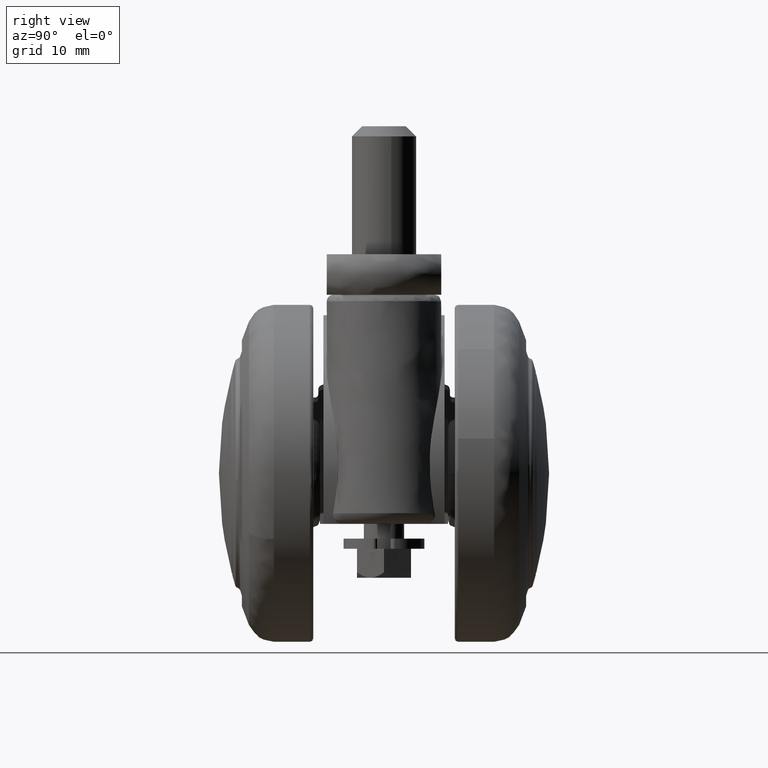
[diagram: clean part render]
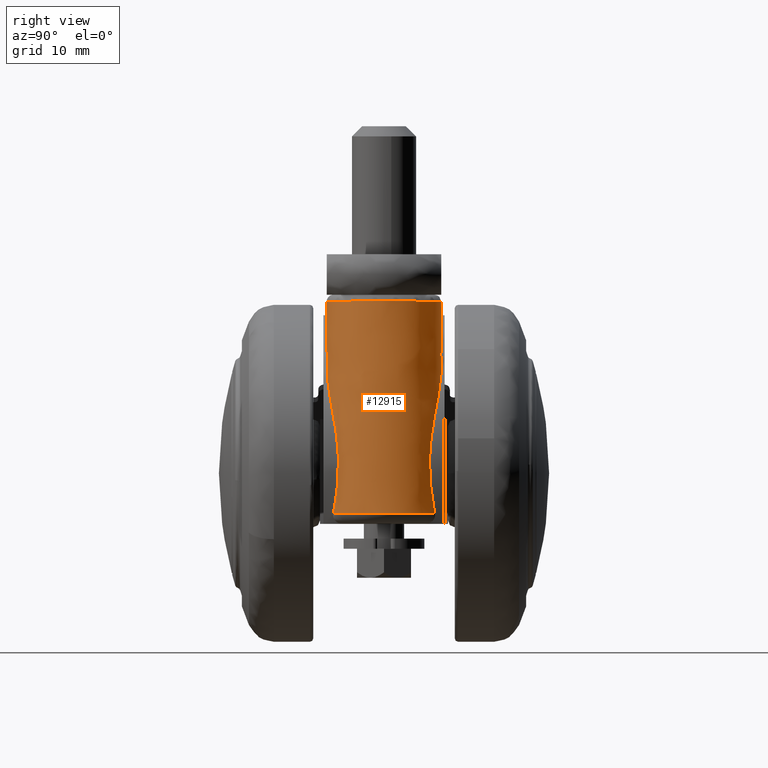
[diagram: same view with one face highlighted and labeled with its STEP entity id]
A machine part, right view. The second image highlights one B-rep face of the part: STEP entity #12915.
In plain terms, the highlighted face is a freeform B-spline surface patch.
Its self-contained STEP definition (entity closure, byte-faithful):
#9848=CARTESIAN_POINT('',(17.056777956763629,-8.500000000000000,25.499999999999869));
#9849=VERTEX_POINT('',#9848);
#9863=CARTESIAN_POINT('',(9.075447202903510,2.952384880922540,25.444876328705998));
#9864=VERTEX_POINT('',#9863);
#9865=CARTESIAN_POINT('',(9.075447202903510,2.952384880922540,25.444876328705998));
#9866=CARTESIAN_POINT('',(11.550152189597323,9.624673196774994,25.461968069087700));
#9867=CARTESIAN_POINT('',(18.562493955646659,8.365929289971973,25.510399344786560));
#9868=CARTESIAN_POINT('',(25.574835721696012,7.107185383168953,25.558830620485427));
#9869=CARTESIAN_POINT('',(25.568038876241470,-0.008102495308164,25.558783676774439));
#9870=CARTESIAN_POINT('',(25.561242030786921,-7.123390373785282,25.558736733063455));
#9871=CARTESIAN_POINT('',(18.546508197894340,-8.368785236654317,25.510288936098171));
#9872=CARTESIAN_POINT('',(17.807436982942622,-8.499999836712162,25.505184484095029));
#9873=CARTESIAN_POINT('',(17.056777956763629,-8.500000000000000,25.499999999999861));
#9881=(BOUNDED_CURVE()B_SPLINE_CURVE(2,(#9865,#9866,#9867,#9868,#9869,#9870,#9871,#9872,#9873),.UNSPECIFIED.,.F.,.U.)B_SPLINE_CURVE_WITH_KNOTS((3,2,2,2,3),(0.0,0.250000000000000,0.500000000000000,0.750000000000000,0.783283949678068),.UNSPECIFIED.)CURVE()GEOMETRIC_REPRESENTATION_ITEM()RATIONAL_B_SPLINE_CURVE((1.0,0.766801441220863,1.0,0.766801441220863,1.0,0.766801441220863,1.0,0.968952923618389,0.946172801860271))REPRESENTATION_ITEM(''));
#9882=EDGE_CURVE('',#9864,#9849,#9881,.T.);
#9980=CARTESIAN_POINT('',(9.069811845328861,-2.937190276854305,25.444837405818650));
#9981=VERTEX_POINT('',#9980);
#9989=CARTESIAN_POINT('',(17.056777956763629,-8.500000000000000,25.499999999999869));
#9990=CARTESIAN_POINT('',(11.120948412629003,-8.499999999978323,25.459003737876895));
#9991=CARTESIAN_POINT('',(9.069811845328861,-2.937190276854326,25.444837405818689));
#9999=(BOUNDED_CURVE()B_SPLINE_CURVE(2,(#9989,#9990,#9991),.UNSPECIFIED.,.F.,.U.)B_SPLINE_CURVE_WITH_KNOTS((3,3),(0.783283949678068,1.0),.UNSPECIFIED.)CURVE()GEOMETRIC_REPRESENTATION_ITEM()RATIONAL_B_SPLINE_CURVE((0.946172801860272,0.797848517602474,1.0))REPRESENTATION_ITEM(''));
#10000=EDGE_CURVE('',#9849,#9981,#9999,.T.);
#11243=CARTESIAN_POINT('',(22.884421657853402,7.516820868601760,-5.958834475768210));
#11244=VERTEX_POINT('',#11243);
#11419=CARTESIAN_POINT('',(16.482851119549000,8.438124471990021,17.681804329725850));
#11420=VERTEX_POINT('',#11419);
#11435=CARTESIAN_POINT('',(22.884421657853402,7.516820868601760,-5.958834475768210));
#11436=CARTESIAN_POINT('',(22.941035205759501,7.479574176039711,-5.743664703561418));
#11437=CARTESIAN_POINT('',(23.053400865462059,7.405647539461216,-5.316599198990497));
#11438=CARTESIAN_POINT('',(23.197850357664532,7.299434482752839,-4.674427883910498));
#11439=CARTESIAN_POINT('',(23.323646654923451,7.199598077634553,-4.037475372915838));
#11440=CARTESIAN_POINT('',(23.429829002798911,7.107527343991423,-3.405241178190038));
#11441=CARTESIAN_POINT('',(23.517428412781779,7.024265004432325,-2.777810326827642));
#11442=CARTESIAN_POINT('',(23.586899676400659,6.950754600101239,-2.155118631816310));
#11443=CARTESIAN_POINT('',(23.638782279710110,6.887785205316636,-1.537142284235447));
#11444=CARTESIAN_POINT('',(23.673504431166311,6.836008262977459,-0.923863591479593));
#11445=CARTESIAN_POINT('',(23.691459443789832,6.795958863885354,-0.315226587847751));
#11446=CARTESIAN_POINT('',(23.694791475558990,6.728768864974462,1.135265893010022));
#11447=CARTESIAN_POINT('',(23.506254882257629,6.769606742350410,3.469992097558791));
#11448=CARTESIAN_POINT('',(22.893021020169289,7.100516303880302,6.214123630903401));
#11449=CARTESIAN_POINT('',(22.088752421635728,7.498715084716715,8.529690043623191));
#11450=CARTESIAN_POINT('',(21.227480042849709,7.860746685595074,10.449208108394190));
#11451=CARTESIAN_POINT('',(20.378032612156240,8.131655114637612,11.946957666682490));
#11452=CARTESIAN_POINT('',(19.635105109359760,8.302943642131927,13.107694932109730));
#11453=CARTESIAN_POINT('',(19.048567877204871,8.405745516386718,13.999580676893039));
#11454=CARTESIAN_POINT('',(18.388990409920719,8.479160728360197,14.976932932915050));
#11455=CARTESIAN_POINT('',(17.713875094603271,8.507064315062490,15.957575067134989));
#11456=CARTESIAN_POINT('',(17.080275599176190,8.494933682653562,16.858447289154650));
#11457=CARTESIAN_POINT('',(16.673954527198639,8.456296532415909,17.418429892401711));
#11458=CARTESIAN_POINT('',(16.482851119549000,8.438124471990021,17.681804329725850));
#11459=B_SPLINE_CURVE_WITH_KNOTS('',3,(#11435,#11436,#11437,#11438,#11439,#11440,#11441,#11442,#11443,#11444,#11445,#11446,#11447,#11448,#11449,#11450,#11451,#11452,#11453,#11454,#11455,#11456,#11457,#11458),.UNSPECIFIED.,.F.,.U.,(4,1,1,1,1,1,1,1,1,1,1,1,1,1,1,1,1,1,1,1,1,4),(0.0,0.026363962758521,0.052326769427147,0.077908219648945,0.103129012710371,0.128010749353429,0.152575925959269,0.176847920190641,0.200850967268826,0.224610126198441,0.248151235444041,0.370549190044193,0.496847238813326,0.577595991505935,0.660470245736561,0.746007352332712,0.780990271434176,0.822759933892346,0.871318893285512,0.919022303390770,0.961914075264850,1.0),.UNSPECIFIED.);
#11460=EDGE_CURVE('',#11244,#11420,#11459,.T.);
#11543=CARTESIAN_POINT('',(14.601306427490020,8.036616070161891,20.108176495131101));
#11544=VERTEX_POINT('',#11543);
#11558=CARTESIAN_POINT('',(16.482851119549000,8.438124471990021,17.681804329725850));
#11559=CARTESIAN_POINT('',(16.349956653015330,8.421569956355567,17.861884634854189));
#11560=CARTESIAN_POINT('',(16.089467455427940,8.389121107230800,18.214863772418880));
#11561=CARTESIAN_POINT('',(15.700720078826240,8.320631784174331,18.726941455700949));
#11562=CARTESIAN_POINT('',(15.323978913138021,8.239424697782685,19.212320469294550));
#11563=CARTESIAN_POINT('',(14.959603701792769,8.146762080091074,19.671343708823311));
#11564=CARTESIAN_POINT('',(14.718915710003239,8.072770945257366,19.964788324858571));
#11565=CARTESIAN_POINT('',(14.601306427490020,8.036616070161891,20.108176495131101));
#11566=B_SPLINE_CURVE_WITH_KNOTS('',3,(#11558,#11559,#11560,#11561,#11562,#11563,#11564,#11565),.UNSPECIFIED.,.F.,.U.,(4,1,1,1,1,4),(0.0,0.217227073643007,0.425791288256460,0.625738739886945,0.817121751911590,1.0),.UNSPECIFIED.);
#11567=EDGE_CURVE('',#11420,#11544,#11566,.T.);
#11672=CARTESIAN_POINT('',(14.601306427490020,8.036616070161891,20.108176495131101));
#11673=CARTESIAN_POINT('',(14.481213548656060,7.996753245416715,20.251837932274551));
#11674=CARTESIAN_POINT('',(14.243851070199909,7.917964697421417,20.535783422341641));
#11675=CARTESIAN_POINT('',(13.887808574381941,7.779329408386889,20.946606887693871));
#11676=CARTESIAN_POINT('',(13.538002643774890,7.627430347488995,21.339807199137539));
#11677=CARTESIAN_POINT('',(13.194754329389569,7.460917696057602,21.714758400910291));
#11678=CARTESIAN_POINT('',(12.858804674837179,7.280317984727159,22.071669610904340));
#11679=CARTESIAN_POINT('',(12.530787719228201,7.085712618126713,22.410538519307270));
#11680=CARTESIAN_POINT('',(12.211357495708640,6.877331229718630,22.731400906771469));
#11681=CARTESIAN_POINT('',(11.901181142993600,6.655425200588224,23.034340472318050));
#11682=CARTESIAN_POINT('',(11.545076217725381,6.376533213686886,23.372108847269399));
#11683=CARTESIAN_POINT('',(11.148304279546560,6.028467473899989,23.735712028648749));
#11684=CARTESIAN_POINT('',(10.720371666522190,5.596481032393622,24.113745407805439));
#11685=CARTESIAN_POINT('',(10.320661225150531,5.130590908589452,24.454576841359149));
#11686=CARTESIAN_POINT('',(9.952177946792025,4.632227106405162,24.758679179266188));
#11687=CARTESIAN_POINT('',(9.619272474225816,4.102211708368975,25.025308764665169));
#11688=CARTESIAN_POINT('',(9.321167953240236,3.544943694512685,25.257939854316209));
#11689=CARTESIAN_POINT('',(9.157133632768433,3.149372781228574,25.382731910059690));
#11690=CARTESIAN_POINT('',(9.075447202903510,2.952384880922540,25.444876328705998));
#11691=B_SPLINE_CURVE_WITH_KNOTS('',3,(#11672,#11673,#11674,#11675,#11676,#11677,#11678,#11679,#11680,#11681,#11682,#11683,#11684,#11685,#11686,#11687,#11688,#11689,#11690),.UNSPECIFIED.,.F.,.U.,(4,1,1,1,1,1,1,1,1,1,1,1,1,1,1,1,4),(0.000000334470217,0.060065076264869,0.118717744214144,0.175988769110606,0.231911196559887,0.286520520440494,0.339854856295161,0.391955118008977,0.442865194842565,0.492632125011662,0.569035385416414,0.643785277018034,0.717078120918658,0.789122149929663,0.860136582534868,0.930350280830971,0.999999988766130),.UNSPECIFIED.);
#11692=EDGE_CURVE('',#11544,#9864,#11691,.T.);
#11901=CARTESIAN_POINT('',(14.628022531672819,-8.045893827576380,20.069857094206849));
#11902=VERTEX_POINT('',#11901);
#11916=CARTESIAN_POINT('',(9.069811845328861,-2.937190276854305,25.444837405818650));
#11917=CARTESIAN_POINT('',(9.116575341781120,-3.053691671713162,25.409258015076500));
#11918=CARTESIAN_POINT('',(9.210263578204485,-3.287096165672058,25.337976553583299));
#11919=CARTESIAN_POINT('',(9.369231424229312,-3.625153152024175,25.215480425694651));
#11920=CARTESIAN_POINT('',(9.541079377885069,-3.954325577088332,25.081385383943282));
#11921=CARTESIAN_POINT('',(9.726524408145687,-4.273313381666476,24.934534754126339));
#11922=CARTESIAN_POINT('',(9.924532304766885,-4.581949076938127,24.775192946388330));
#11923=CARTESIAN_POINT('',(10.134534701799719,-4.879812087136295,24.603240333666481));
#11924=CARTESIAN_POINT('',(10.355833021846760,-5.166602031039120,24.418660813331741));
#11925=CARTESIAN_POINT('',(10.587762798563940,-5.442036870160722,24.221410810631550));
#11926=CARTESIAN_POINT('',(10.829650867251990,-5.705878221280750,24.011451808393140));
#11927=CARTESIAN_POINT('',(11.080832953177470,-5.957927097326677,23.788753348317108));
#11928=CARTESIAN_POINT('',(11.340638025200970,-6.198008535720375,23.553247810392410));
#11929=CARTESIAN_POINT('',(11.698545253951270,-6.502747073628900,23.221496286036810));
#11930=CARTESIAN_POINT('',(12.165431504084600,-6.853544524823009,22.772258819887629));
#11931=CARTESIAN_POINT('',(12.748418257768989,-7.224497039442545,22.182384502469262));
#11932=CARTESIAN_POINT('',(13.357525999037479,-7.548733848852051,21.534013039283749));
#11933=CARTESIAN_POINT('',(13.989827997570830,-7.829777969037107,20.828928851520988));
#11934=CARTESIAN_POINT('',(14.412311585852370,-7.972846263297405,20.326424767488820));
#11935=CARTESIAN_POINT('',(14.628022531672819,-8.045893827576380,20.069857094206849));
#11936=B_SPLINE_CURVE_WITH_KNOTS('',3,(#11916,#11917,#11918,#11919,#11920,#11921,#11922,#11923,#11924,#11925,#11926,#11927,#11928,#11929,#11930,#11931,#11932,#11933,#11934,#11935),.UNSPECIFIED.,.F.,.U.,(4,1,1,1,1,1,1,1,1,1,1,1,1,1,1,1,1,4),(0.0,0.040674376785903,0.081489001417612,0.122492174220741,0.163731533068911,0.205253902963467,0.247105159016631,0.289330104438047,0.331972364608009,0.375074297810461,0.418676922718299,0.462819862294503,0.507541303408546,0.598028239368916,0.692282287909166,0.790553093407466,0.893060957695392,1.0),.UNSPECIFIED.);
#11937=EDGE_CURVE('',#9981,#11902,#11936,.T.);
#12014=CARTESIAN_POINT('',(16.454623500356050,-8.433802439995430,17.714687722858450));
#12015=VERTEX_POINT('',#12014);
#12030=CARTESIAN_POINT('',(14.628022531672819,-8.045893827576380,20.069857094206849));
#12031=CARTESIAN_POINT('',(14.740901550326839,-8.080170396492989,19.932211410633052));
#12032=CARTESIAN_POINT('',(14.972624312772639,-8.150534768288821,19.649646604375970));
#12033=CARTESIAN_POINT('',(15.324267583057161,-8.239379697183139,19.206387287500640));
#12034=CARTESIAN_POINT('',(15.689908211291760,-8.318044977039939,18.735242753684389));
#12035=CARTESIAN_POINT('',(16.069222409513650,-8.385129928241700,18.235858103976721));
#12036=CARTESIAN_POINT('',(16.324233419799100,-8.417335406353656,17.891011686626619));
#12037=CARTESIAN_POINT('',(16.454623500356050,-8.433802439995430,17.714687722858450));
#12038=B_SPLINE_CURVE_WITH_KNOTS('',3,(#12030,#12031,#12032,#12033,#12034,#12035,#12036,#12037),.UNSPECIFIED.,.F.,.U.,(4,1,1,1,1,4),(0.0,0.180786206581500,0.371125473101122,0.571075467264974,0.780685922880068,1.000000000000000),.UNSPECIFIED.);
#12039=EDGE_CURVE('',#11902,#12015,#12038,.T.);
#12173=CARTESIAN_POINT('',(22.884421657854048,-7.516820868601419,-5.958834475768200));
#12174=VERTEX_POINT('',#12173);
#12188=CARTESIAN_POINT('',(16.454623500356050,-8.433802439995430,17.714687722858450));
#12189=CARTESIAN_POINT('',(16.598520724204629,-8.448525893099399,17.517217073279301));
#12190=CARTESIAN_POINT('',(16.898383985293261,-8.479207624792835,17.105713673508930));
#12191=CARTESIAN_POINT('',(17.359763421716011,-8.500303104275393,16.457326015900890));
#12192=CARTESIAN_POINT('',(17.851851442711901,-8.501324684606164,15.754885662015949));
#12193=CARTESIAN_POINT('',(18.523476042073959,-8.468669072795922,14.778029138666200));
#12194=CARTESIAN_POINT('',(19.290070986895518,-8.374006850486923,13.637237941838380));
#12195=CARTESIAN_POINT('',(20.109607370917189,-8.198843281947200,12.376511214418009));
#12196=CARTESIAN_POINT('',(20.793145894324219,-8.000589052539231,11.224552656960940));
#12197=CARTESIAN_POINT('',(21.384629588441040,-7.789950177165823,10.083742733080630));
#12198=CARTESIAN_POINT('',(21.903253041864630,-7.575220772521206,8.936871629809222));
#12199=CARTESIAN_POINT('',(22.351100663354359,-7.368184370053410,7.783178785925380));
#12200=CARTESIAN_POINT('',(22.942826491222782,-7.072866185837707,5.986572221678456));
#12201=CARTESIAN_POINT('',(23.500532643893600,-6.771618264514101,3.513964989326912));
#12202=CARTESIAN_POINT('',(23.711636907188929,-6.722873823495839,0.971407266730482));
#12203=CARTESIAN_POINT('',(23.683458540958739,-6.827611093032862,-0.895426987346200));
#12204=CARTESIAN_POINT('',(23.597486999330378,-6.943542256372659,-2.138348625688202));
#12205=CARTESIAN_POINT('',(23.439021004132019,-7.102513697713929,-3.398881367437663));
#12206=CARTESIAN_POINT('',(23.209977972522040,-7.296763364763464,-4.679174068529069));
#12207=CARTESIAN_POINT('',(22.993987584356489,-7.442760550292409,-5.528164966959476));
#12208=CARTESIAN_POINT('',(22.884421657854048,-7.516820868601419,-5.958834475768200));
#12209=B_SPLINE_CURVE_WITH_KNOTS('',3,(#12188,#12189,#12190,#12191,#12192,#12193,#12194,#12195,#12196,#12197,#12198,#12199,#12200,#12201,#12202,#12203,#12204,#12205,#12206,#12207,#12208),.UNSPECIFIED.,.F.,.U.,(4,1,1,1,1,1,1,1,1,1,1,1,1,1,1,1,1,1,4),(0.000000164308846,0.028557043947512,0.059509021783737,0.092858782268554,0.128608596295363,0.197851326857412,0.253503834390934,0.305172920279531,0.355751086849525,0.405347946190603,0.454079798634802,0.502069292555429,0.628649993261960,0.750533614609962,0.798143810742657,0.846702575503707,0.896409723858489,0.947451529308848,1.0),.UNSPECIFIED.);
#12210=EDGE_CURVE('',#12015,#12174,#12209,.T.);
#12393=CARTESIAN_POINT('',(22.884421657854059,-7.516820868601410,-5.958834475768197));
#12394=CARTESIAN_POINT('',(27.421203602789554,-5.124433799219100,-5.911824467522101));
#12395=CARTESIAN_POINT('',(27.421203602789550,3.726602E-013,-5.911824467522101));
#12396=CARTESIAN_POINT('',(27.421203602789554,5.124433799219609,-5.911824467522101));
#12397=CARTESIAN_POINT('',(22.884421657853402,7.516820868601759,-5.958834475768204));
#12405=(BOUNDED_CURVE()B_SPLINE_CURVE(2,(#12393,#12394,#12395,#12396,#12397),.UNSPECIFIED.,.F.,.U.)B_SPLINE_CURVE_WITH_KNOTS((3,2,3),(0.0,0.500000000000000,1.0),.UNSPECIFIED.)CURVE()GEOMETRIC_REPRESENTATION_ITEM()RATIONAL_B_SPLINE_CURVE((1.0,0.856404930734300,1.0,0.856404930734300,1.0))REPRESENTATION_ITEM(''));
#12406=EDGE_CURVE('',#12174,#11244,#12405,.T.);
#12878=CARTESIAN_POINT('',(10.944673615203721,2.720911821493190,-7.692985771699280));
#12879=CARTESIAN_POINT('',(8.944823208523756,2.720911821493190,26.268683019916871));
#12880=CARTESIAN_POINT('',(13.264533268017406,9.598602440739498,-7.556379637925754));
#12881=CARTESIAN_POINT('',(11.264682861337434,9.598602440739498,26.405289153690411));
#12882=CARTESIAN_POINT('',(20.408707243810380,8.379242857197248,-7.135691263672222));
#12883=CARTESIAN_POINT('',(18.408856837130411,8.379242857197246,26.825977527943952));
#12884=CARTESIAN_POINT('',(27.552881219603357,7.159883273655001,-6.715002889418695));
#12885=CARTESIAN_POINT('',(25.553030812923382,7.159883273654995,27.246665902197492));
#12886=CARTESIAN_POINT('',(27.468211634904709,-0.099307073877531,-6.719988701642235));
#12887=CARTESIAN_POINT('',(25.468361228224740,-0.099307073877537,27.241680089973951));
#12888=CARTESIAN_POINT('',(27.383542050206056,-7.358497421410064,-6.724974513865786));
#12889=CARTESIAN_POINT('',(25.383691643526088,-7.358497421410074,27.236694277750413));
#12890=CARTESIAN_POINT('',(20.212877592038058,-8.410312955150738,-7.147222793855281));
#12891=CARTESIAN_POINT('',(18.213027185358079,-8.410312955150738,26.814445997760920));
#12892=CARTESIAN_POINT('',(13.042213133870053,-9.462128488891411,-7.569471073844794));
#12893=CARTESIAN_POINT('',(11.042362727190069,-9.462128488891400,26.392197717771435));
#12894=CARTESIAN_POINT('',(10.883404601575680,-2.532018542042328,-7.696593629209879));
#12895=CARTESIAN_POINT('',(8.883554194895707,-2.532018542042318,26.265075162406340));
#12903=(BOUNDED_SURFACE()B_SPLINE_SURFACE(1,2,((#12878,#12880,#12882,#12884,#12886,#12888,#12890,#12892,#12894),(#12879,#12881,#12883,#12885,#12887,#12889,#12891,#12893,#12895)),.UNSPECIFIED.,.F.,.F.,.U.)B_SPLINE_SURFACE_WITH_KNOTS((2,2),(3,2,2,2,3),(0.0,34.020498949317847),(0.0,12.543262221734130,25.086524443468250,37.629786665202381,50.173048886936513),.UNSPECIFIED.)GEOMETRIC_REPRESENTATION_ITEM()RATIONAL_B_SPLINE_SURFACE(((1.0,0.760405965600031,1.0,0.760405965600031,1.0,0.760405965600031,1.0,0.760405965600031,1.0),(1.0,0.760405965600031,1.0,0.760405965600031,1.0,0.760405965600031,1.0,0.760405965600031,1.0)))REPRESENTATION_ITEM('')SURFACE());
#12904=ORIENTED_EDGE('',*,*,#12406,.T.);
#12905=ORIENTED_EDGE('',*,*,#11460,.T.);
#12906=ORIENTED_EDGE('',*,*,#11567,.T.);
#12907=ORIENTED_EDGE('',*,*,#11692,.T.);
#12908=ORIENTED_EDGE('',*,*,#9882,.T.);
#12909=ORIENTED_EDGE('',*,*,#10000,.T.);
#12910=ORIENTED_EDGE('',*,*,#11937,.T.);
#12911=ORIENTED_EDGE('',*,*,#12039,.T.);
#12912=ORIENTED_EDGE('',*,*,#12210,.T.);
#12913=EDGE_LOOP('',(#12904,#12905,#12906,#12907,#12908,#12909,#12910,#12911,#12912));
#12914=FACE_OUTER_BOUND('',#12913,.T.);
#12915=ADVANCED_FACE('',(#12914),#12903,.T.);